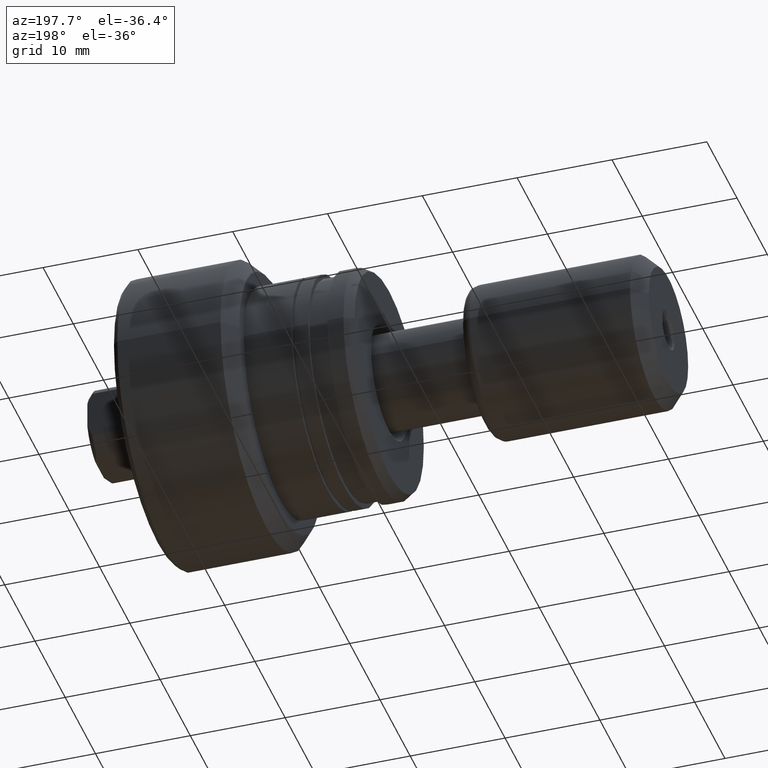
[diagram: clean part render]
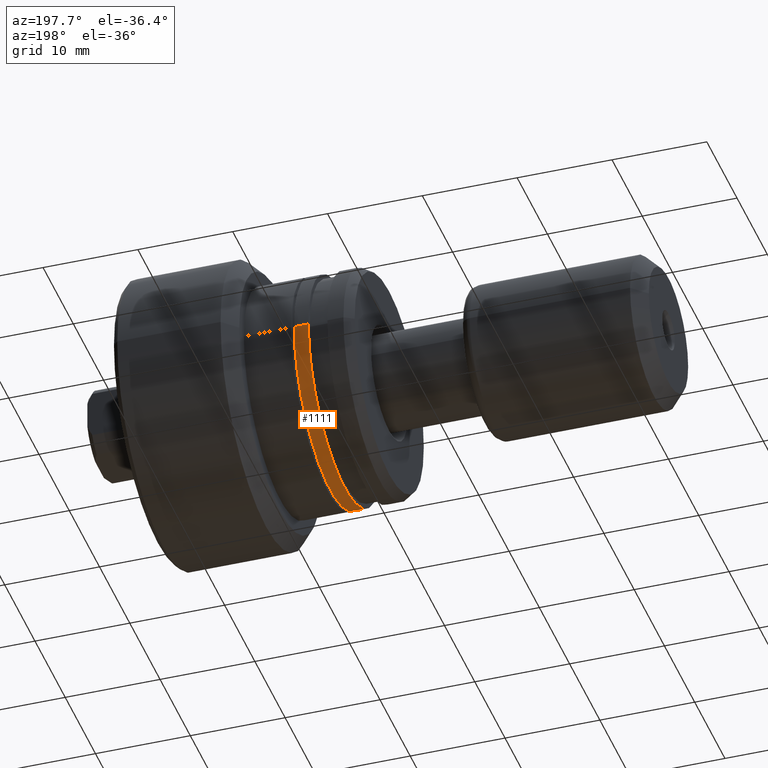
[diagram: same view with one face highlighted and labeled with its STEP entity id]
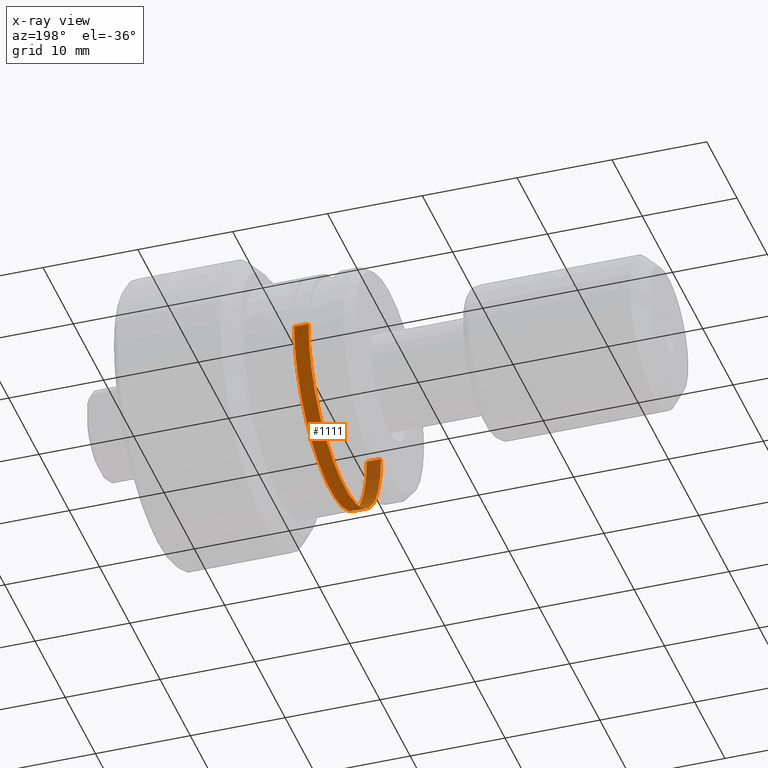
[diagram: x-ray of the same camera — body ghosted, the highlighted face saturated]
A machine part, auxiliary view. The second image highlights one B-rep face of the part: STEP entity #1111.
The next image is the same camera in x-ray: the body ghosted, the highlighted face saturated — about 16% of this face is hidden behind the body in this view.
In plain terms, the highlighted cylindrical surface (partial cylindrical patch) has radius 12 mm, axis along (-1, 0, 0).
Its self-contained STEP definition (entity closure, byte-faithful):
#1 = FACE_OUTER_BOUND ( 'NONE', #1765, .T. ) ;
#120 = CARTESIAN_POINT ( 'NONE',  ( -19.79999999999999361, 11.99999999999998934, 1.469576158976823553E-15 ) ) ;
#262 = LINE ( 'NONE', #1759, #608 ) ;
#375 = CYLINDRICAL_SURFACE ( 'NONE', #604, 11.99999999999999645 ) ;
#396 = VERTEX_POINT ( 'NONE', #120 ) ;
#426 = VERTEX_POINT ( 'NONE', #882 ) ;
#491 = VERTEX_POINT ( 'NONE', #1846 ) ;
#563 = AXIS2_PLACEMENT_3D ( 'NONE', #1257, #1079, #2033 ) ;
#585 = DIRECTION ( 'NONE',  ( -1.000000000000000000, 6.415603269213350828E-16, -0.000000000000000000 ) ) ;
#601 = CARTESIAN_POINT ( 'NONE',  ( -30.28002276692733119, -11.99999999999999645, 0.000000000000000000 ) ) ;
#604 = AXIS2_PLACEMENT_3D ( 'NONE', #1889, #585, #1181 ) ;
#608 = VECTOR ( 'NONE', #1411, 1000.000000000000000 ) ;
#702 = ORIENTED_EDGE ( 'NONE', *, *, #991, .T. ) ;
#703 = CARTESIAN_POINT ( 'NONE',  ( -18.29999999999999361, -7.685907322874935705E-15, 0.000000000000000000 ) ) ;
#882 = CARTESIAN_POINT ( 'NONE',  ( -18.29999999999998650, 11.99999999999998934, 1.469576158976823553E-15 ) ) ;
#915 = ORIENTED_EDGE ( 'NONE', *, *, #2014, .F. ) ;
#991 = EDGE_CURVE ( 'NONE', #426, #491, #1823, .T. ) ;
#1079 = DIRECTION ( 'NONE',  ( -1.000000000000000000, 6.415603269213350828E-16, -0.000000000000000000 ) ) ;
#1111 = ADVANCED_FACE ( 'NONE', ( #1 ), #375, .T. ) ;
#1181 = DIRECTION ( 'NONE',  ( -5.782411586589358625E-16, -1.000000000000000000, 0.000000000000000000 ) ) ;
#1207 = AXIS2_PLACEMENT_3D ( 'NONE', #703, #1251, #2201 ) ;
#1251 = DIRECTION ( 'NONE',  ( -1.000000000000000000, 6.415603269213350828E-16, -0.000000000000000000 ) ) ;
#1257 = CARTESIAN_POINT ( 'NONE',  ( -19.80000000000000071, -6.723566832492926967E-15, 0.000000000000000000 ) ) ;
#1302 = ORIENTED_EDGE ( 'NONE', *, *, #1348, .F. ) ;
#1348 = EDGE_CURVE ( 'NONE', #426, #396, #262, .T. ) ;
#1411 = DIRECTION ( 'NONE',  ( -1.000000000000000000, 6.415603269213350828E-16, -0.000000000000000000 ) ) ;
#1549 = LINE ( 'NONE', #601, #1941 ) ;
#1597 = CARTESIAN_POINT ( 'NONE',  ( -19.80000000000000782, -12.00000000000000355, 0.000000000000000000 ) ) ;
#1631 = CIRCLE ( 'NONE', #563, 11.99999999999999645 ) ;
#1759 = CARTESIAN_POINT ( 'NONE',  ( -30.28002276692731698, 11.99999999999999645, 1.469576158976823553E-15 ) ) ;
#1765 = EDGE_LOOP ( 'NONE', ( #1302, #702, #2334, #915 ) ) ;
#1783 = EDGE_CURVE ( 'NONE', #491, #1870, #1549, .T. ) ;
#1823 = CIRCLE ( 'NONE', #1207, 11.99999999999999645 ) ;
#1846 = CARTESIAN_POINT ( 'NONE',  ( -18.30000000000000071, -12.00000000000000355, 0.000000000000000000 ) ) ;
#1870 = VERTEX_POINT ( 'NONE', #1597 ) ;
#1889 = CARTESIAN_POINT ( 'NONE',  ( -30.28002276692732408, 0.000000000000000000, 0.000000000000000000 ) ) ;
#1941 = VECTOR ( 'NONE', #2154, 1000.000000000000000 ) ;
#2014 = EDGE_CURVE ( 'NONE', #396, #1870, #1631, .T. ) ;
#2033 = DIRECTION ( 'NONE',  ( -5.782411586589358625E-16, -1.000000000000000000, 0.000000000000000000 ) ) ;
#2154 = DIRECTION ( 'NONE',  ( -1.000000000000000000, 6.415603269213350828E-16, -0.000000000000000000 ) ) ;
#2201 = DIRECTION ( 'NONE',  ( -5.782411586589358625E-16, -1.000000000000000000, 0.000000000000000000 ) ) ;
#2334 = ORIENTED_EDGE ( 'NONE', *, *, #1783, .T. ) ;